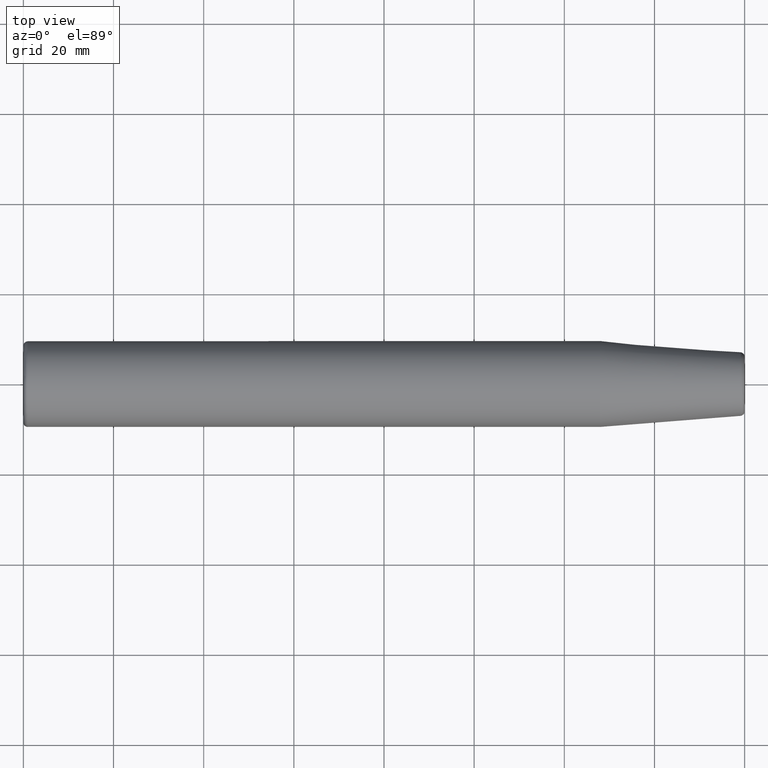
[diagram: clean part render]
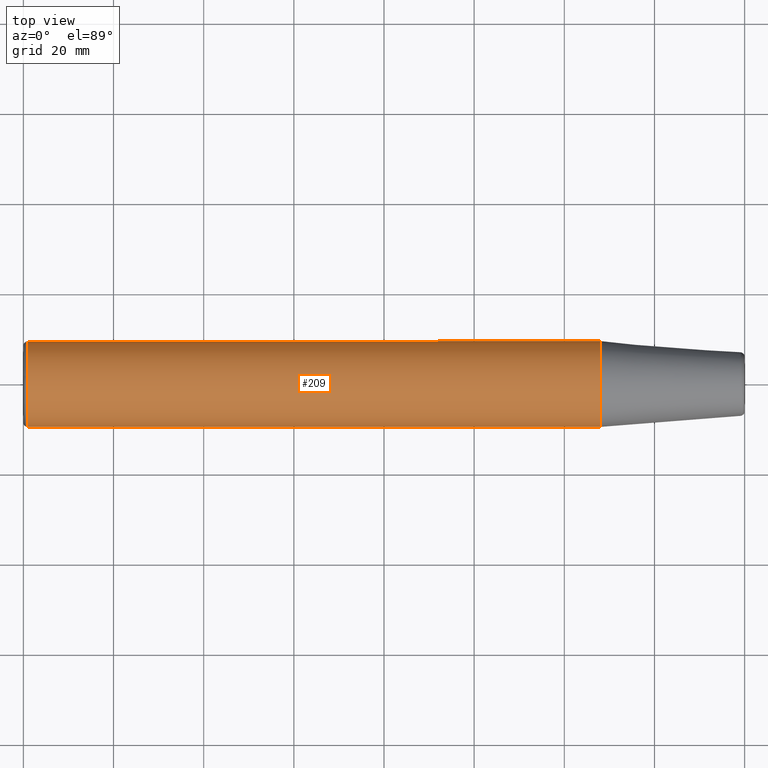
[diagram: same view with one face highlighted and labeled with its STEP entity id]
A machine part, top view. The second image highlights one B-rep face of the part: STEP entity #209.
In plain terms, the highlighted cylindrical surface (bore or boss wall) has radius 9.525 mm, axis along (-1, 0, 0).
Its self-contained STEP definition (entity closure, byte-faithful):
#21=LINE('',#395,#28);
#28=VECTOR('',#326,9.52499999999999);
#34=CYLINDRICAL_SURFACE('',#261,9.52499999999999);
#51=FACE_OUTER_BOUND('',#66,.T.);
#66=EDGE_LOOP('',(#174,#175,#176,#177,#178));
#89=CIRCLE('',#259,9.52499999999999);
#90=CIRCLE('',#260,9.52499999999999);
#91=CIRCLE('',#262,9.525);
#108=VERTEX_POINT('',#388);
#109=VERTEX_POINT('',#390);
#110=VERTEX_POINT('',#394);
#132=EDGE_CURVE('',#108,#109,#89,.T.);
#133=EDGE_CURVE('',#109,#108,#90,.T.);
#134=EDGE_CURVE('',#109,#110,#21,.T.);
#135=EDGE_CURVE('',#110,#110,#91,.T.);
#174=ORIENTED_EDGE('',*,*,#133,.F.);
#175=ORIENTED_EDGE('',*,*,#134,.T.);
#176=ORIENTED_EDGE('',*,*,#135,.T.);
#177=ORIENTED_EDGE('',*,*,#134,.F.);
#178=ORIENTED_EDGE('',*,*,#132,.F.);
#209=ADVANCED_FACE('',(#51),#34,.T.);
#259=AXIS2_PLACEMENT_3D('',#391,#320,#321);
#260=AXIS2_PLACEMENT_3D('',#392,#322,#323);
#261=AXIS2_PLACEMENT_3D('',#393,#324,#325);
#262=AXIS2_PLACEMENT_3D('',#396,#327,#328);
#320=DIRECTION('center_axis',(-1.,0.,0.));
#321=DIRECTION('ref_axis',(0.,-1.,-1.83697019872103E-16));
#322=DIRECTION('center_axis',(-1.,0.,0.));
#323=DIRECTION('ref_axis',(0.,-1.,-1.83697019872103E-16));
#324=DIRECTION('center_axis',(-1.,0.,0.));
#325=DIRECTION('ref_axis',(0.,1.,0.));
#326=DIRECTION('',(1.,0.,0.));
#327=DIRECTION('center_axis',(-1.,0.,0.));
#328=DIRECTION('ref_axis',(0.,0.,1.));
#388=CARTESIAN_POINT('',(-159.,-1.16647607618785E-15,-9.52499999999999));
#390=CARTESIAN_POINT('',(-159.,-9.52499999999999,1.16647607618785E-15));
#391=CARTESIAN_POINT('Origin',(-159.,0.,0.));
#392=CARTESIAN_POINT('Origin',(-159.,0.,0.));
#393=CARTESIAN_POINT('Origin',(-96.0415834794205,0.,0.));
#394=CARTESIAN_POINT('',(-32.083166958841,-9.52499999999999,1.16647607618785E-15));
#395=CARTESIAN_POINT('',(-96.0415834794205,-9.52499999999999,1.16647607618785E-15));
#396=CARTESIAN_POINT('Origin',(-32.083166958841,0.,0.));